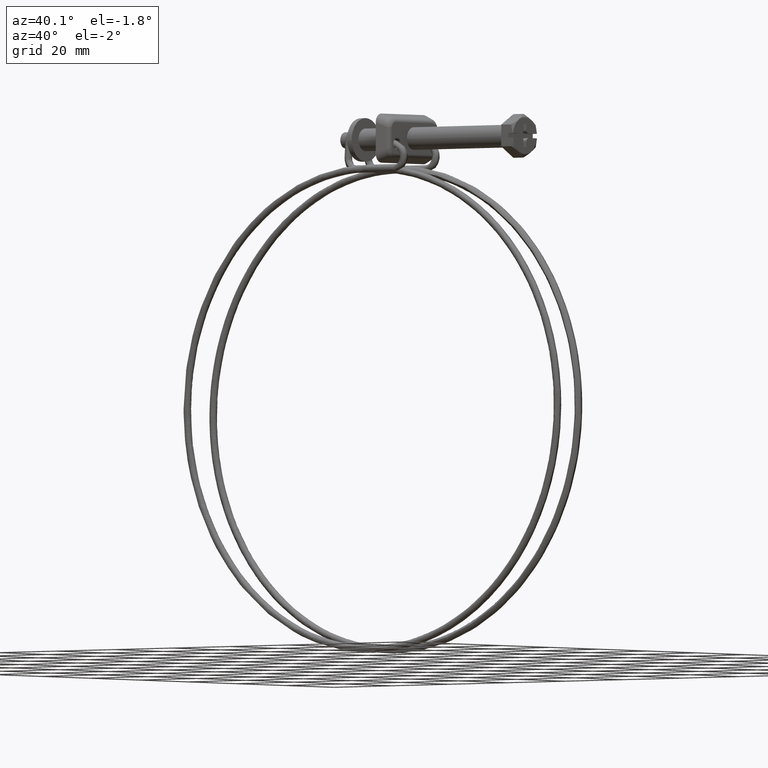
[diagram: clean part render]
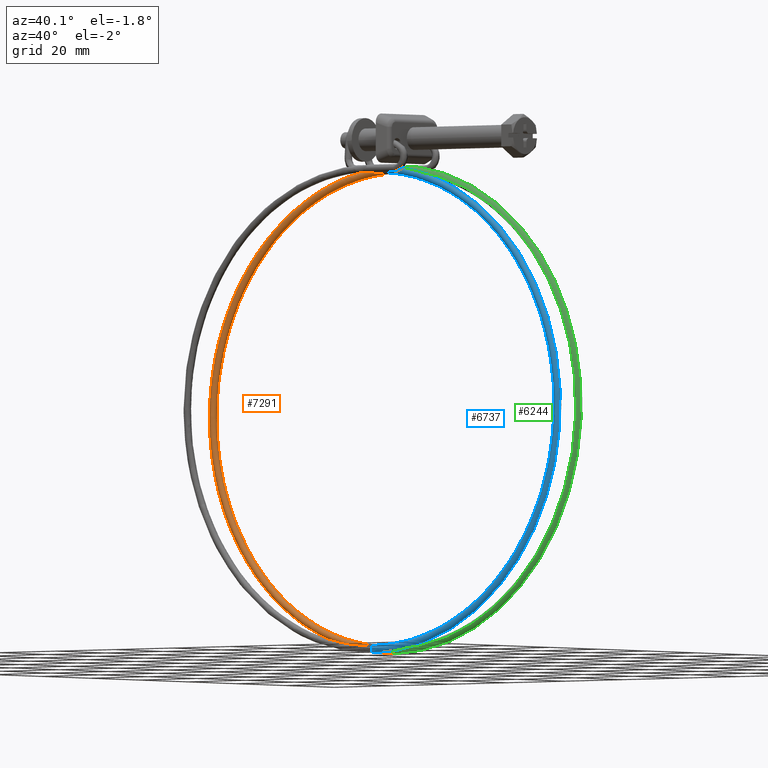
[diagram: same view with three faces highlighted in distinct colors, each labeled with its STEP entity id]
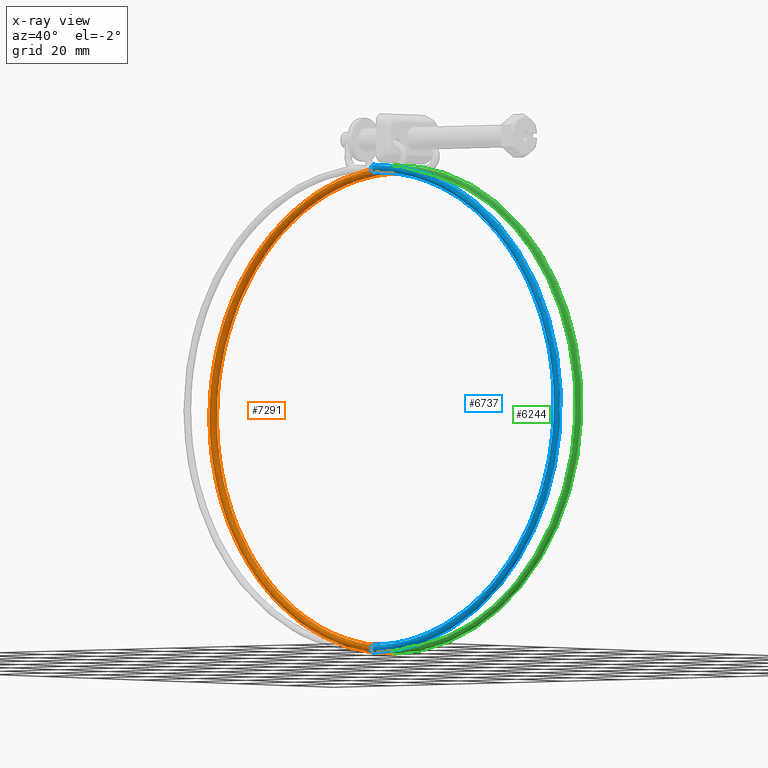
[diagram: x-ray of the same camera — body ghosted, the three highlighted faces saturated]
A machine part, auxiliary view with three faces highlighted in distinct colors.
The next image is the same camera in x-ray (body ghosted, the three faces saturated) — at least one of them is partly hidden behind the body in this view.
Their STEP definitions:

[orange] entity #7291 — the highlighted face is a freeform B-spline surface patch.
#4623=CARTESIAN_POINT('',(-44.650000000000730,5.310473993684795,-7.879430721519410));
#4624=VERTEX_POINT('',#4623);
#4630=CARTESIAN_POINT('',(-44.650000000000723,6.278356289201745,-8.849500152061689));
#4631=VERTEX_POINT('',#4630);
#4632=CARTESIAN_POINT('',(-44.650000000000723,6.278356289201745,-8.849500152061689));
#4633=CARTESIAN_POINT('',(-44.650000000000723,6.016682609479345,-8.841215521238825));
#4634=CARTESIAN_POINT('',(-44.650000000000723,5.760028721938428,-8.725262853996449));
#4635=CARTESIAN_POINT('',(-44.650000000000723,5.415616176367671,-8.358343669943045));
#4636=CARTESIAN_POINT('',(-44.650000000000723,5.318147108054395,-8.120582971277360));
#4637=CARTESIAN_POINT('',(-44.650000000000730,5.310473993684795,-7.879430721519410));
#4638=B_SPLINE_CURVE_WITH_KNOTS('',3,(#4632,#4633,#4634,#4635,#4636,#4637),.UNSPECIFIED.,.F.,.U.,(4,2,4),(0.500000000000000,0.625000000000000,0.740274508793307),.UNSPECIFIED.);
#4639=EDGE_CURVE('',#4631,#4624,#4638,.T.);
#4641=CARTESIAN_POINT('',(-44.650000000000738,7.060248471098623,-7.188876349357892));
#4642=VERTEX_POINT('',#4641);
#4643=CARTESIAN_POINT('',(-44.650000000000738,7.060248471098623,-7.188876349357892));
#4644=CARTESIAN_POINT('',(-44.650000000000730,7.226087322394508,-7.377586474456125));
#4645=CARTESIAN_POINT('',(-44.650000000000723,7.317454450969998,-7.630445629973024));
#4646=CARTESIAN_POINT('',(-44.650000000000730,7.301216254554100,-8.143314882367477));
#4647=CARTESIAN_POINT('',(-44.650000000000723,7.185263349566473,-8.399961293022724));
#4648=CARTESIAN_POINT('',(-44.650000000000730,6.803492058073807,-8.758299623096498));
#4649=CARTESIAN_POINT('',(-44.650000000000723,6.540024555317264,-8.857784955022979));
#4650=CARTESIAN_POINT('',(-44.650000000000723,6.278356289201745,-8.849500152061689));
#4651=B_SPLINE_CURVE_WITH_KNOTS('',3,(#4643,#4644,#4645,#4646,#4647,#4648,#4649,#4650),.UNSPECIFIED.,.F.,.U.,(4,2,2,4),(0.130000262351246,0.250000000000000,0.375000000000000,0.500000000000000),.UNSPECIFIED.);
#4652=EDGE_CURVE('',#4642,#4631,#4651,.T.);
#4654=CARTESIAN_POINT('',(-44.650000000000752,6.341647521705658,-6.850501847938292));
#4655=VERTEX_POINT('',#4654);
#4665=CARTESIAN_POINT('',(-44.650000000000723,5.988340755549976,-6.903656420743625));
#4666=VERTEX_POINT('',#4665);
#4667=CARTESIAN_POINT('',(-44.650000000000723,5.988340755549976,-6.903656420743625));
#4668=CARTESIAN_POINT('',(-44.650000000000730,6.101737214638789,-6.865172243400705));
#4669=CARTESIAN_POINT('',(-44.650000000000738,6.221881488286583,-6.846560706144649));
#4670=CARTESIAN_POINT('',(-44.650000000000752,6.341647521705658,-6.850501847938292));
#4671=B_SPLINE_CURVE_WITH_KNOTS('',3,(#4667,#4668,#4669,#4670),.UNSPECIFIED.,.F.,.U.,(4,4),(0.942811831421911,1.0),.UNSPECIFIED.);
#4672=EDGE_CURVE('',#4666,#4655,#4671,.T.);
#4708=CARTESIAN_POINT('',(-44.650000000000730,5.310473993684795,-7.879430721519410));
#4709=CARTESIAN_POINT('',(-44.650000000000730,5.309825440732663,-7.859078844673854));
#4710=CARTESIAN_POINT('',(-44.650000000000730,5.309816003032521,-7.838702678756057));
#4711=CARTESIAN_POINT('',(-44.650000000000730,5.318722089756965,-7.556584230430167));
#4712=CARTESIAN_POINT('',(-44.650000000000723,5.434647724878667,-7.299830920141325));
#4713=CARTESIAN_POINT('',(-44.650000000000723,5.729048915405349,-7.023310962390822));
#4714=CARTESIAN_POINT('',(-44.650000000000723,5.853951245677701,-6.949512736215663));
#4715=CARTESIAN_POINT('',(-44.650000000000723,5.988340755549976,-6.903656420743625));
#4716=B_SPLINE_CURVE_WITH_KNOTS('',3,(#4708,#4709,#4710,#4711,#4712,#4713,#4714,#4715),.UNSPECIFIED.,.F.,.U.,(4,2,2,4),(0.740274508793307,0.750000000000000,0.875000000000000,0.942811831421911),.UNSPECIFIED.);
#4717=EDGE_CURVE('',#4624,#4666,#4716,.T.);
#6096=CARTESIAN_POINT('',(-44.649999999999046,4.300002000000752,-133.850000999999990));
#6097=VERTEX_POINT('',#6096);
#6098=CARTESIAN_POINT('',(-44.649999999769619,3.302485887016020,-134.780271342321810));
#6099=VERTEX_POINT('',#6098);
#6100=CARTESIAN_POINT('',(-44.649999999999046,4.300002000000752,-133.850000999999990));
#6101=CARTESIAN_POINT('',(-44.649999999966852,4.038195655370024,-133.850000495566090));
#6102=CARTESIAN_POINT('',(-44.649999999922478,3.777998799463453,-133.957772896960310));
#6103=CARTESIAN_POINT('',(-44.649999999838357,3.424196145361151,-134.311556064605810));
#6104=CARTESIAN_POINT('',(-44.649999999799007,3.319730377627817,-134.542534340478000));
#6105=CARTESIAN_POINT('',(-44.649999999769619,3.302485887016020,-134.780271342321810));
#6106=B_SPLINE_CURVE_WITH_KNOTS('',3,(#6100,#6101,#6102,#6103,#6104,#6105),.UNSPECIFIED.,.F.,.U.,(4,2,4),(0.500000000000000,0.625000000000000,0.738888458231654),.UNSPECIFIED.);
#6107=EDGE_CURVE('',#6097,#6099,#6106,.T.);
#6128=CARTESIAN_POINT('',(-44.649999999938402,4.287435984473220,-135.849920191922910));
#6129=VERTEX_POINT('',#6128);
#6145=CARTESIAN_POINT('',(-44.649999999999046,4.300002000000752,-135.850000999999990));
#6146=VERTEX_POINT('',#6145);
#6147=CARTESIAN_POINT('',(-44.649999999938402,4.287435984473220,-135.849920191922910));
#6148=CARTESIAN_POINT('',(-44.649999999958617,4.291624042900045,-135.849974639911810));
#6149=CARTESIAN_POINT('',(-44.649999999978832,4.295812815061126,-135.850001617475900));
#6150=CARTESIAN_POINT('',(-44.649999999999046,4.300002000000752,-135.850000999999990));
#6151=B_SPLINE_CURVE_WITH_KNOTS('',3,(#6147,#6148,#6149,#6150),.UNSPECIFIED.,.F.,.U.,(4,4),(0.997999815404391,1.0),.UNSPECIFIED.);
#6152=EDGE_CURVE('',#6129,#6146,#6151,.T.);
#6154=CARTESIAN_POINT('',(-44.649999999999046,5.028951109211137,-135.534536542634610));
#6155=VERTEX_POINT('',#6154);
#6165=CARTESIAN_POINT('',(-44.649999999999046,5.028951109211137,-135.534536542634610));
#6166=CARTESIAN_POINT('',(-44.649999999999046,5.200678748661970,-135.351169005261110));
#6167=CARTESIAN_POINT('',(-44.649999999999046,5.300002000000750,-135.101327862820110));
#6168=CARTESIAN_POINT('',(-44.649999999999046,5.300002000000750,-134.588201612201000));
#6169=CARTESIAN_POINT('',(-44.649999999999046,5.192228903610570,-134.328014341236810));
#6170=CARTESIAN_POINT('',(-44.649999999999046,4.821988658764040,-133.957774096390210));
#6171=CARTESIAN_POINT('',(-44.649999999999046,4.561801387799900,-133.850000999999990));
#6172=CARTESIAN_POINT('',(-44.649999999999046,4.300002000000752,-133.850000999999990));
#6173=B_SPLINE_CURVE_WITH_KNOTS('',3,(#6165,#6166,#6167,#6168,#6169,#6170,#6171,#6172),.UNSPECIFIED.,.F.,.U.,(4,2,2,4),(0.130000262351250,0.250000000000000,0.375000000000000,0.500000000000000),.UNSPECIFIED.);
#6174=EDGE_CURVE('',#6155,#6097,#6173,.T.);
#6227=CARTESIAN_POINT('',(-44.649999999769619,3.302485887016020,-134.780271342321810));
#6228=CARTESIAN_POINT('',(-44.649999999771467,3.300804588162054,-134.803466287406710));
#6229=CARTESIAN_POINT('',(-44.649999999773392,3.299953544919192,-134.826725569291400));
#6230=CARTESIAN_POINT('',(-44.649999999797728,3.299960689536710,-135.111797701208100));
#6231=CARTESIAN_POINT('',(-44.649999999828417,3.407742793962304,-135.371985962488710));
#6232=CARTESIAN_POINT('',(-44.649999999888657,3.775038524063567,-135.739265955749490));
#6233=CARTESIAN_POINT('',(-44.649999999917860,4.029889019311994,-135.846533327676610));
#6234=CARTESIAN_POINT('',(-44.649999999938402,4.287435984473220,-135.849920191922910));
#6235=B_SPLINE_CURVE_WITH_KNOTS('',3,(#6227,#6228,#6229,#6230,#6231,#6232,#6233,#6234),.UNSPECIFIED.,.F.,.U.,(4,2,2,4),(0.738888458231655,0.750000000000000,0.875000000000000,0.997999815404391),.UNSPECIFIED.);
#6236=EDGE_CURVE('',#6099,#6129,#6235,.T.);
#6950=CARTESIAN_POINT('',(-44.650000000000752,7.060247383395493,-7.188875111646729));
#6951=CARTESIAN_POINT('',(-44.650000000000752,7.226086922888497,-7.377585368821764));
#6952=CARTESIAN_POINT('',(-44.650000000000752,7.317454468358229,-7.630445080780981));
#6953=CARTESIAN_POINT('',(-44.650000000000752,7.301216254554100,-8.143314882367440));
#6954=CARTESIAN_POINT('',(-44.650000000000752,7.185263349566470,-8.399961293022672));
#6955=CARTESIAN_POINT('',(-44.650000000000752,6.803492058073810,-8.758299623096429));
#6956=CARTESIAN_POINT('',(-44.650000000000752,6.540024555317270,-8.857784955022929));
#6957=CARTESIAN_POINT('',(-44.650000000000752,6.016688023086230,-8.841215349100351));
#6958=CARTESIAN_POINT('',(-44.650000000000752,5.760041612430980,-8.725262444112728));
#6959=CARTESIAN_POINT('',(-44.650000000000752,5.401703282357210,-8.343491152620040));
#6960=CARTESIAN_POINT('',(-44.650000000000752,5.302217950430720,-8.080023649863540));
#6961=CARTESIAN_POINT('',(-44.650000000000752,5.318787556353300,-7.556687117632470));
#6962=CARTESIAN_POINT('',(-44.650000000000752,5.434740461340931,-7.300040706977230));
#6963=CARTESIAN_POINT('',(-44.650000000000752,5.816511752833590,-6.941702376903450));
#6964=CARTESIAN_POINT('',(-44.650000000000752,6.079979255590140,-6.842217044976980));
#6965=CARTESIAN_POINT('',(-44.650000000000752,6.341647521705660,-6.850501847938270));
#6966=CARTESIAN_POINT('',(-53.051651431607482,7.060575803439125,-7.188908363623680));
#6967=CARTESIAN_POINT('',(-53.027288726071809,7.226414870708392,-7.377618476348133));
#6968=CARTESIAN_POINT('',(-52.994373129776271,7.317781775157282,-7.630477993664703));
#6969=CARTESIAN_POINT('',(-52.927193507523597,7.301542245185391,-8.143347398465890));
#6970=CARTESIAN_POINT('',(-52.893352565473798,7.185588673076540,-8.399993609677381));
#6971=CARTESIAN_POINT('',(-52.845647111730102,6.803816436463370,-8.758331659314971));
#6972=CARTESIAN_POINT('',(-52.832076362208397,6.540348663842369,-8.857816911285340));
#6973=CARTESIAN_POINT('',(-52.833161297427203,6.017012153205029,-8.841247311847740));
#6974=CARTESIAN_POINT('',(-52.847810301350499,5.760366033793420,-8.725294492837460));
#6975=CARTESIAN_POINT('',(-52.897050085241801,5.402028678888110,-8.343523491030300));
#6976=CARTESIAN_POINT('',(-52.931337654886804,5.302544022571950,-8.080056190238681));
#6977=CARTESIAN_POINT('',(-52.999888289751802,5.319114970838470,-7.556720062957150));
#6978=CARTESIAN_POINT('',(-53.033729231800997,5.435068534402700,-7.300073852599399));
#6979=CARTESIAN_POINT('',(-53.081434685543002,5.816840749744360,-6.941735805315671));
#6980=CARTESIAN_POINT('',(-53.095005435064401,6.080308514333880,-6.842250553917420));
#6981=CARTESIAN_POINT('',(-53.094462967455001,6.341976769989345,-6.850535353601700));
#6982=CARTESIAN_POINT('',(-61.447229034803840,7.033812454892935,-8.859146726053931));
#6983=CARTESIAN_POINT('',(-61.398521364195922,7.199728651103868,-9.043013499008501));
#6984=CARTESIAN_POINT('',(-61.332714140011873,7.291199764768548,-9.289329349497427));
#6985=CARTESIAN_POINT('',(-61.198403814481800,7.275172930174960,-9.788843350263299));
#6986=CARTESIAN_POINT('',(-61.130746572874401,7.159326504964470,-10.038761933907820));
#6987=CARTESIAN_POINT('',(-61.035370403554602,6.777705317632980,-10.387616070438460));
#6988=CARTESIAN_POINT('',(-61.008238786380801,6.514280514946380,-10.484403438034420));
#6989=CARTESIAN_POINT('',(-61.010407866850599,5.990940568993540,-10.468049525191040));
#6990=CARTESIAN_POINT('',(-61.039695207617100,5.734248065564690,-10.355008949389140));
#6991=CARTESIAN_POINT('',(-61.138138919892803,5.375754803591200,-9.983026887486091));
#6992=CARTESIAN_POINT('',(-61.206689091451103,5.276161586575820,-9.726376004580210));
#6993=CARTESIAN_POINT('',(-61.343740444148203,5.292515499433630,-9.216667840533399));
#6994=CARTESIAN_POINT('',(-61.411397685755603,5.408361924640510,-8.966749256831179));
#6995=CARTESIAN_POINT('',(-61.506773855075402,5.789983111964800,-8.617895120358250));
#6996=CARTESIAN_POINT('',(-61.533905472249202,6.053407914662210,-8.521107752646900));
#6997=CARTESIAN_POINT('',(-61.532820932014303,6.315077887642235,-8.529284709068604));
#6998=CARTESIAN_POINT('',(-76.968836144363166,6.932057569280046,-15.288435567917629));
#6999=CARTESIAN_POINT('',(-76.875122169119265,7.098268812992252,-15.453660035947740));
#7000=CARTESIAN_POINT('',(-76.748508506532801,7.190138554991925,-15.674788922478980));
#7001=CARTESIAN_POINT('',(-76.490094290317501,7.174925307355230,-16.122897179493350));
#7002=CARTESIAN_POINT('',(-76.359921178060503,7.059488716986089,-16.346920726180549));
#7003=CARTESIAN_POINT('',(-76.176416611815895,6.678445272343129,-16.659270722802901));
#7004=CARTESIAN_POINT('',(-76.124215148206801,6.415184819856441,-16.745673773585398));
#7005=CARTESIAN_POINT('',(-76.128388477528802,5.891831734657570,-16.730150051499951));
#7006=CARTESIAN_POINT('',(-76.184737571838497,5.634961822698060,-16.628318871137751));
#7007=CARTESIAN_POINT('',(-76.374144117073101,5.275872236349860,-16.294015016235051));
#7008=CARTESIAN_POINT('',(-76.506035234215801,5.175863775571210,-16.063600929024300));
#7009=CARTESIAN_POINT('',(-76.769723209830403,5.191387497642261,-15.606347605540250));
#7010=CARTESIAN_POINT('',(-76.899896322087315,5.306824088015009,-15.382324058910649));
#7011=CARTESIAN_POINT('',(-77.083400888331994,5.687867532665170,-15.069974062230701));
#7012=CARTESIAN_POINT('',(-77.135602351941202,5.951127985141050,-14.983571011563500));
#7013=CARTESIAN_POINT('',(-77.133515687280152,6.212804527736881,-14.991332872606240));
#7014=CARTESIAN_POINT('',(-84.087385564468789,6.856777735413060,-20.044922621343009));
#7015=CARTESIAN_POINT('',(-83.973032020821165,7.023207251832245,-20.196355729215480));
#7016=CARTESIAN_POINT('',(-83.818532961798525,7.115371894415058,-20.398851593265640));
#7017=CARTESIAN_POINT('',(-83.503205591675993,7.100760528941549,-20.808930479382848));
#7018=CARTESIAN_POINT('',(-83.344363149463902,6.985627129613540,-21.013797179227549));
#7019=CARTESIAN_POINT('',(-83.120443532673789,6.605011092272820,-21.299141838023850));
#7020=CARTESIAN_POINT('',(-83.056745217168100,6.341872224166321,-21.377862692232348));
#7021=CARTESIAN_POINT('',(-83.061837680734996,5.818509418706429,-21.362953135677198));
#7022=CARTESIAN_POINT('',(-83.130597101093898,5.561508261980531,-21.269414535391999));
#7023=CARTESIAN_POINT('',(-83.361718548892910,5.201977521797949,-20.962984579466450));
#7024=CARTESIAN_POINT('',(-83.522657369294308,5.101661868510591,-20.751980168212249));
#7025=CARTESIAN_POINT('',(-83.844419991983600,5.116571425116211,-20.333532325235549));
#7026=CARTESIAN_POINT('',(-84.003262433849599,5.231704824444220,-20.128665625333099));
#7027=CARTESIAN_POINT('',(-84.227182050754990,5.612320861777720,-19.843320966652151));
#7028=CARTESIAN_POINT('',(-84.290880366260694,5.875459729891440,-19.764600112385999));
#7029=CARTESIAN_POINT('',(-84.288334134534963,6.137141132617781,-19.772054890721250));
#7030=CARTESIAN_POINT('',(-95.967045076682737,6.668760400986726,-31.924624940055612));
#7031=CARTESIAN_POINT('',(-95.818249912202631,6.835735019029441,-32.041616303168297));
#7032=CARTESIAN_POINT('',(-95.617217988082771,6.928636129290855,-32.197579134561543));
#7033=CARTESIAN_POINT('',(-95.206918609600393,6.915527869517170,-32.512685670217799));
#7034=CARTESIAN_POINT('',(-95.000235139395699,6.801151641930370,-32.669711169258953));
#7035=CARTESIAN_POINT('',(-94.708874197204807,6.421602986894519,-32.887614259819202));
#7036=CARTESIAN_POINT('',(-94.625990877629803,6.158767756550941,-32.947150040626447));
#7037=CARTESIAN_POINT('',(-94.632617116884802,5.635380676299599,-32.933774265296698));
#7038=CARTESIAN_POINT('',(-94.722085872616802,5.378051756455229,-32.860945075023352));
#7039=CARTESIAN_POINT('',(-95.022817732262993,5.017419304229071,-32.624125781624549));
#7040=CARTESIAN_POINT('',(-95.232228979519590,4.916336486144460,-32.461593972113050));
#7041=CARTESIAN_POINT('',(-95.650901814590298,4.929712261423719,-32.140056690831152));
#7042=CARTESIAN_POINT('',(-95.857585285140999,5.044088489010520,-31.983031191847711));
#7043=CARTESIAN_POINT('',(-96.148946227216612,5.423637144053580,-31.765128101172049));
#7044=CARTESIAN_POINT('',(-96.231829546791602,5.686472374389950,-31.705592320422500));
#7045=CARTESIAN_POINT('',(-96.228516427106399,5.948165914519230,-31.712280208029672));
#7046=CARTESIAN_POINT('',(-100.723482553353700,6.556096872674393,-39.043166336823333));
#7047=CARTESIAN_POINT('',(-100.560898788611890,6.723398103678369,-39.139520960538754));
#7048=CARTESIAN_POINT('',(-100.341237570488800,6.816740489242419,-39.267602217795869));
#7049=CARTESIAN_POINT('',(-99.892916431202408,6.804532857488790,-39.525803400651952));
#7050=CARTESIAN_POINT('',(-99.667079947369999,6.690610310640350,-39.654163499628247));
#7051=CARTESIAN_POINT('',(-99.348719071353401,6.311701207697080,-39.831657079348552));
#7052=CARTESIAN_POINT('',(-99.258155092381102,6.049047910463449,-39.879697584293453));
#7053=CARTESIAN_POINT('',(-99.265395374297810,5.525646285271920,-39.867240817190712));
#7054=CARTESIAN_POINT('',(-99.363155050834294,5.268120976964880,-39.806820251832853));
#7055=CARTESIAN_POINT('',(-99.691755231511195,4.906828402995431,-39.611710143135149));
#7056=CARTESIAN_POINT('',(-99.920572270730901,4.805285916567170,-39.478222055232251));
#7057=CARTESIAN_POINT('',(-100.378042821023000,4.817742683669920,-39.214751460481097));
#7058=CARTESIAN_POINT('',(-100.603879304855400,4.931665230511150,-39.086391361475947));
#7059=CARTESIAN_POINT('',(-100.922240180756800,5.310574333458020,-38.908897781784503));
#7060=CARTESIAN_POINT('',(-101.012804159729000,5.573227630691650,-38.860857276839603));
#7061=CARTESIAN_POINT('',(-101.009184018770600,5.834928443287415,-38.867085660390977));
#7062=CARTESIAN_POINT('',(-107.152682043440510,6.310441479500371,-54.564676376603529));
#7063=CARTESIAN_POINT('',(-106.971461132424910,6.478454823336327,-54.616036806002278));
#7064=CARTESIAN_POINT('',(-106.726619920531600,6.572759319555612,-54.683327986552932));
#7065=CARTESIAN_POINT('',(-106.226907262502810,6.562515323194850,-54.817458672667897));
#7066=CARTESIAN_POINT('',(-105.975182907471610,6.449581934523230,-54.883319722932200));
#7067=CARTESIAN_POINT('',(-105.620327993203600,6.072067244267800,-54.972708619269703));
#7068=CARTESIAN_POINT('',(-105.519382570972990,5.809810615003120,-54.995686023499800));
#7069=CARTESIAN_POINT('',(-105.527452813864200,5.286377277557870,-54.985232965995998));
#7070=CARTESIAN_POINT('',(-105.636418783688000,5.028423784306800,-54.951866872439787));
#7071=CARTESIAN_POINT('',(-106.002686745126200,4.665691949747690,-54.847695120409597));
#7072=CARTESIAN_POINT('',(-106.257733319882600,4.563147250394940,-54.777530934131697));
#7073=CARTESIAN_POINT('',(-106.767644195422410,4.573600307898711,-54.640662887075599));
#7074=CARTESIAN_POINT('',(-107.019368550453610,4.686533696577540,-54.574801836840201));
#7075=CARTESIAN_POINT('',(-107.374223464837000,5.064048386829360,-54.485412940473800));
#7076=CARTESIAN_POINT('',(-107.475168887067600,5.326305016094040,-54.462435536243703));
#7077=CARTESIAN_POINT('',(-107.471133765621900,5.588021684816665,-54.467662064995608));
#7078=CARTESIAN_POINT('',(-108.822915579199600,6.177546248342674,-62.961539306634982));
#7079=CARTESIAN_POINT('',(-108.636853328126900,6.345944812743280,-62.988559929086172));
#7080=CARTESIAN_POINT('',(-108.385471151409210,6.440769766942828,-63.022966450787131));
#7081=CARTESIAN_POINT('',(-107.872408604970800,6.431588007782230,-63.089980656967903));
#7082=CARTESIAN_POINT('',(-107.613959401197210,6.319189708561080,-63.122032572408202));
#7083=CARTESIAN_POINT('',(-107.249624491783610,5.942429331978120,-63.163760853485492));
#7084=CARTESIAN_POINT('',(-107.145982299568000,5.680387281992440,-63.173180263382392));
#7085=CARTESIAN_POINT('',(-107.154268140081000,5.156936789659780,-63.163811121338497));
#7086=CARTESIAN_POINT('',(-107.266145149989400,4.898751667883889,-63.145080263159691));
#7087=CARTESIAN_POINT('',(-107.642198007431800,4.535241258992659,-63.090102014347487));
#7088=CARTESIAN_POINT('',(-107.904058184377400,4.432154408154330,-63.054193170632502));
#7089=CARTESIAN_POINT('',(-108.427591395029000,4.441523550154940,-62.985811327648612));
#7090=CARTESIAN_POINT('',(-108.686040598802610,4.553921849379700,-62.953759412092900));
#7091=CARTESIAN_POINT('',(-109.050375508216210,4.930682225962650,-62.912031131073299));
#7092=CARTESIAN_POINT('',(-109.154017700431600,5.192724275948330,-62.902611721176392));
#7093=CARTESIAN_POINT('',(-109.149874780175300,5.454449522114659,-62.907296292198353));
#7094=CARTESIAN_POINT('',(-108.822915579199600,5.911651196657704,-79.761873550318171));
#7095=CARTESIAN_POINT('',(-108.636853328126900,6.080820503233029,-79.740195537436392));
#7096=CARTESIAN_POINT('',(-108.385471151409210,6.176686780136410,-79.708807042282729));
#7097=CARTESIAN_POINT('',(-107.872408604970800,6.169630325492880,-79.641535837602092));
#7098=CARTESIAN_POINT('',(-107.613959401197210,6.058302623336210,-79.605943061852898));
#7099=CARTESIAN_POINT('',(-107.249624491783610,5.683051463579980,-79.552312866002794));
#7100=CARTESIAN_POINT('',(-107.145982299568000,5.421438739844980,-79.534605691642199));
#7101=CARTESIAN_POINT('',(-107.154268140081000,4.897953924348310,-79.527405227763495));
#7102=CARTESIAN_POINT('',(-107.266145149989400,4.639305364504820,-79.537956277344790));
#7103=CARTESIAN_POINT('',(-107.642198007431800,4.274237198475746,-79.581403479510996));
#7104=CARTESIAN_POINT('',(-107.904058184377400,4.170065620997405,-79.614032091433600));
#7105=CARTESIAN_POINT('',(-108.427591395029000,4.177266084919370,-79.682676177784700));
#7106=CARTESIAN_POINT('',(-108.686040598802610,4.288593787072430,-79.718268953649201));
#7107=CARTESIAN_POINT('',(-109.050375508216210,4.663844946828670,-79.771899149441609));
#7108=CARTESIAN_POINT('',(-109.154017700431600,4.925457670563670,-79.789606323802190));
#7109=CARTESIAN_POINT('',(-109.149874780175300,5.187200078312005,-79.793206555741548));
#7110=CARTESIAN_POINT('',(-107.152682043640200,5.778755965500231,-88.158736480306189));
#7111=CARTESIAN_POINT('',(-106.971461132667300,5.948310492638872,-88.112718660463869));
#7112=CARTESIAN_POINT('',(-106.726619920667800,6.044697227525776,-88.048445506461178));
#7113=CARTESIAN_POINT('',(-106.226907262639200,6.038703010078891,-87.914057821902205));
#7114=CARTESIAN_POINT('',(-105.975182907608200,5.927910397372700,-87.844655911299796));
#7115=CARTESIAN_POINT('',(-105.620327993283000,5.553413551285339,-87.743365100217886));
#7116=CARTESIAN_POINT('',(-105.519382571052200,5.292015406829340,-87.712099931495104));
#7117=CARTESIAN_POINT('',(-105.527452814001190,4.768513436448860,-87.705983383076301));
#7118=CARTESIAN_POINT('',(-105.636418783882600,4.509633248080550,-87.731169668063998));
#7119=CARTESIAN_POINT('',(-106.002686745262810,4.143786507719350,-87.823810373506291));
#7120=CARTESIAN_POINT('',(-106.257733319961400,4.039072778759024,-87.890694327905592));
#7121=CARTESIAN_POINT('',(-106.767644195501010,4.045189327174220,-88.027824618329703));
#7122=CARTESIAN_POINT('',(-107.019368550589600,4.155981939873195,-88.097226528874401));
#7123=CARTESIAN_POINT('',(-107.374223464972600,4.530478785964170,-88.198517339956297));
#7124=CARTESIAN_POINT('',(-107.475168887203200,4.791876930420160,-88.229782508621398));
#7125=CARTESIAN_POINT('',(-107.471133765757600,5.053627915610405,-88.232840782859640));
#7126=CARTESIAN_POINT('',(-100.723482553152610,5.533100572325764,-103.680246520173400));
#7127=CARTESIAN_POINT('',(-100.560898788368110,5.703367212299050,-103.589234506040400));
#7128=CARTESIAN_POINT('',(-100.341237570351200,5.800716057834670,-103.464171275329700));
#7129=CARTESIAN_POINT('',(-99.892916431064506,5.796685475787690,-103.205713093918010));
#7130=CARTESIAN_POINT('',(-99.667079947231997,5.686882021258310,-103.073812134662010));
#7131=CARTESIAN_POINT('',(-99.348719071272910,5.313779587865979,-102.884416640140400));
#7132=CARTESIAN_POINT('',(-99.258155092300498,5.052778111378930,-102.828088370760990));
#7133=CARTESIAN_POINT('',(-99.265395374159496,4.529244428737520,-102.823975531941000));
#7134=CARTESIAN_POINT('',(-99.363155050638397,4.269936055425180,-102.876216288672400));
#7135=CARTESIAN_POINT('',(-99.691755231373193,3.902650054474340,-103.059795350665790));
#7136=CARTESIAN_POINT('',(-99.920572270650808,3.796934112582330,-103.190003206862400));
#7137=CARTESIAN_POINT('',(-100.378042820943190,3.801046951405775,-103.453736044980000));
#7138=CARTESIAN_POINT('',(-100.603879304718210,3.910850405942369,-103.585637004293800));
#7139=CARTESIAN_POINT('',(-100.922240180619600,4.283952839331089,-103.775032498815190));
#7140=CARTESIAN_POINT('',(-101.012804159591990,4.544954315818140,-103.831360768252400));
#7141=CARTESIAN_POINT('',(-101.009184018633600,4.806721157138846,-103.833417187633500));
#7142=CARTESIAN_POINT('',(-95.967045076746217,5.420437044008065,-110.798787916762510));
#7143=CARTESIAN_POINT('',(-95.818249912321420,5.591030296939953,-110.687139163291500));
#7144=CARTESIAN_POINT('',(-95.617217988255831,5.688820417784793,-110.534194358392400));
#7145=CARTESIAN_POINT('',(-95.206918609829998,5.685690463754340,-110.218830824236210));
#7146=CARTESIAN_POINT('',(-95.000235139452300,5.576340689959720,-110.058264465001600));
#7147=CARTESIAN_POINT('',(-94.708874197319005,5.203877808667190,-109.828459459611000));
#7148=CARTESIAN_POINT('',(-94.625990877686405,4.943058265282880,-109.760635914397600));
#7149=CARTESIAN_POINT('',(-94.632617116999000,4.419510037712100,-109.757442083689400));
#7150=CARTESIAN_POINT('',(-94.722085872673389,4.160005275929875,-109.822091465423000));
#7151=CARTESIAN_POINT('',(-95.022817732261800,3.792059153241145,-110.047379712233390));
#7152=CARTESIAN_POINT('',(-95.232228979633788,3.685883543005480,-110.206631289837010));
#7153=CARTESIAN_POINT('',(-95.650901814762193,3.689077373645190,-110.528430814601610));
#7154=CARTESIAN_POINT('',(-95.857585285197601,3.798427147443420,-110.688997173836200));
#7155=CARTESIAN_POINT('',(-96.148946227273200,4.170890028737750,-110.918802179227000));
#7156=CARTESIAN_POINT('',(-96.231829546963510,4.431709572122055,-110.986625724555590));
#7157=CARTESIAN_POINT('',(-96.228516427307142,4.693483685905643,-110.988222639909690));
#7158=CARTESIAN_POINT('',(-84.087385564403093,5.232419709592930,-122.678490235744110));
#7159=CARTESIAN_POINT('',(-83.973032020700103,5.403558064151002,-122.532399737368710));
#7160=CARTESIAN_POINT('',(-83.818532961623163,5.502084652667801,-122.332921899919100));
#7161=CARTESIAN_POINT('',(-83.503205591444100,5.500457804337170,-121.922586015302000));
#7162=CARTESIAN_POINT('',(-83.344363149405098,5.391865202290971,-121.714178455032990));
#7163=CARTESIAN_POINT('',(-83.120443532557402,5.020469703281680,-121.416931881521610));
#7164=CARTESIAN_POINT('',(-83.056745217109395,4.759953797674720,-121.329923262791600));
#7165=CARTESIAN_POINT('',(-83.061837680618595,4.236381295298060,-121.328263213539600));
#7166=CARTESIAN_POINT('',(-83.130597101035093,3.976548770411786,-121.413622005169600));
#7167=CARTESIAN_POINT('',(-83.361718548891801,3.607500935668655,-121.708520914391400));
#7168=CARTESIAN_POINT('',(-83.522657369177793,3.500558160642955,-121.916245093968600));
#7169=CARTESIAN_POINT('',(-83.844419991809502,3.502218209963525,-122.334955180197200));
#7170=CARTESIAN_POINT('',(-84.003262433790809,3.610810812006120,-122.543362740466190));
#7171=CARTESIAN_POINT('',(-84.227182050696285,3.982206311013610,-122.840609313977590));
#7172=CARTESIAN_POINT('',(-84.290880366086597,4.242722216620570,-122.927617932592000));
#7173=CARTESIAN_POINT('',(-84.288334134331990,4.504508467810700,-122.928447957218100));
#7174=CARTESIAN_POINT('',(-76.968836144379608,5.157139875709456,-127.434977289042490));
#7175=CARTESIAN_POINT('',(-76.875122169156867,5.328496502970783,-127.275095430564800));
#7176=CARTESIAN_POINT('',(-76.748508506518249,5.427317992083942,-127.056984570686000));
#7177=CARTESIAN_POINT('',(-76.490094290359096,5.426293025912970,-126.608619315115400));
#7178=CARTESIAN_POINT('',(-76.359921178159610,5.318003614907900,-126.381054908004000));
#7179=CARTESIAN_POINT('',(-76.176416611857107,4.947035523215260,-126.056802996724400));
#7180=CARTESIAN_POINT('',(-76.124215148247799,4.686641201977681,-125.962112181362800));
#7181=CARTESIAN_POINT('',(-76.128388477685206,4.163058979343596,-125.961066297525600));
#7182=CARTESIAN_POINT('',(-76.184737571937404,3.903095209685541,-126.054717669521200));
#7183=CARTESIAN_POINT('',(-76.374144117114497,3.533606221113430,-126.377490477662210));
#7184=CARTESIAN_POINT('',(-76.506035234199700,3.426356253579015,-126.604624333138200));
#7185=CARTESIAN_POINT('',(-76.769723209987703,3.427402137426945,-127.062139899931590));
#7186=CARTESIAN_POINT('',(-76.899896322071811,3.535691548432020,-127.289704306812400));
#7187=CARTESIAN_POINT('',(-77.083400888374399,3.906659640128255,-127.613956218092000));
#7188=CARTESIAN_POINT('',(-77.135602352098999,4.167053961364040,-127.708647033453600));
#7189=CARTESIAN_POINT('',(-77.133515687409144,4.428845072681081,-127.709169975372110));
#7190=CARTESIAN_POINT('',(-61.447229034783888,5.055384990118354,-133.864266130890290));
#7191=CARTESIAN_POINT('',(-61.398521364154803,5.227036664885746,-133.685741967522290));
#7192=CARTESIAN_POINT('',(-61.332714140023022,5.326256782314093,-133.442444143475310));
#7193=CARTESIAN_POINT('',(-61.198403814436702,5.326045403107090,-132.942673144266000));
#7194=CARTESIAN_POINT('',(-61.130746572771812,5.218165826936160,-132.689213700427810));
#7195=CARTESIAN_POINT('',(-61.035370403509887,4.847775477924861,-132.328457649009010));
#7196=CARTESIAN_POINT('',(-61.008238786336207,4.587545506894389,-132.223382517064610));
#7197=CARTESIAN_POINT('',(-61.010407866690699,4.063950145021490,-132.223166823985390));
#7198=CARTESIAN_POINT('',(-61.039695207514796,3.803808966829160,-132.328027590959210));
#7199=CARTESIAN_POINT('',(-61.138138919847897,3.433723653882345,-132.688478606331610));
#7200=CARTESIAN_POINT('',(-61.206689091463701,3.326058442577450,-132.941849257387390));
#7201=CARTESIAN_POINT('',(-61.343740443987393,3.326274135645825,-133.451819664859410));
#7202=CARTESIAN_POINT('',(-61.411397685767703,3.434153711816750,-133.705279108928210));
#7203=CARTESIAN_POINT('',(-61.506773855029500,3.804544060824450,-134.066035160347010));
#7204=CARTESIAN_POINT('',(-61.533905472087902,4.064774031856725,-134.171110292291390));
#7205=CARTESIAN_POINT('',(-61.532820931881851,4.326571712793173,-134.171218138830990));
#7206=CARTESIAN_POINT('',(-53.051651470460513,5.028950509460651,-135.534537751249590));
#7207=CARTESIAN_POINT('',(-53.027288764814813,5.200678839415823,-135.351170105030210));
#7208=CARTESIAN_POINT('',(-52.994373168309188,5.300002522990141,-135.101328420362310));
#7209=CARTESIAN_POINT('',(-52.927193545749098,5.300002518803160,-134.588201620276010));
#7210=CARTESIAN_POINT('',(-52.893352603565887,5.192229420310789,-134.328014348504410));
#7211=CARTESIAN_POINT('',(-52.845647149528503,4.821989172513820,-133.957774100658610));
#7212=CARTESIAN_POINT('',(-52.832076399934103,4.561801900726520,-133.850001001961200));
#7213=CARTESIAN_POINT('',(-52.833161335241400,4.038203125227130,-133.850000997692400));
#7214=CARTESIAN_POINT('',(-52.847810339195398,3.778015855190265,-133.957774092121010));
#7215=CARTESIAN_POINT('',(-52.897050123296303,3.407775613436005,-134.328014333967390));
#7216=CARTESIAN_POINT('',(-52.931337693075200,3.300002519189035,-134.588201603893000));
#7217=CARTESIAN_POINT('',(-52.999888328427197,3.300002523461460,-135.111800379491200));
#7218=CARTESIAN_POINT('',(-53.033729270524098,3.407775621953825,-135.371987651494010));
#7219=CARTESIAN_POINT('',(-53.081434724561397,3.778015869747175,-135.742227899340800));
#7220=CARTESIAN_POINT('',(-53.095005474242200,4.038203141541691,-135.850000997692400));
#7221=CARTESIAN_POINT('',(-53.094463006610212,4.300002529291390,-135.850000999826790));
#7222=CARTESIAN_POINT('',(-44.649999999999046,5.028949982884636,-135.534537745304790));
#7223=CARTESIAN_POINT('',(-44.649999999999046,5.200678314367561,-135.351170097699110));
#7224=CARTESIAN_POINT('',(-44.649999999999046,5.300002000000750,-135.101328412287190));
#7225=CARTESIAN_POINT('',(-44.649999999999046,5.300002000000750,-134.588201612201000));
#7226=CARTESIAN_POINT('',(-44.649999999999046,5.192228903610570,-134.328014341236810));
#7227=CARTESIAN_POINT('',(-44.649999999999046,4.821988658764040,-133.957774096390210));
#7228=CARTESIAN_POINT('',(-44.649999999999046,4.561801387799900,-133.850000999999990));
#7229=CARTESIAN_POINT('',(-44.649999999999046,4.038202612201605,-133.850000999999990));
#7230=CARTESIAN_POINT('',(-44.649999999999046,3.778015341237470,-133.957774096390210));
#7231=CARTESIAN_POINT('',(-44.649999999999046,3.407775096390940,-134.328014341236810));
#7232=CARTESIAN_POINT('',(-44.649999999999046,3.300002000000755,-134.588201612201000));
#7233=CARTESIAN_POINT('',(-44.649999999999046,3.300002000000755,-135.111800387799210));
#7234=CARTESIAN_POINT('',(-44.649999999999046,3.407775096390940,-135.371987658763200));
#7235=CARTESIAN_POINT('',(-44.649999999999046,3.778015341237470,-135.742227903610000));
#7236=CARTESIAN_POINT('',(-44.649999999999046,4.038202612201605,-135.850000999999990));
#7237=CARTESIAN_POINT('',(-44.649999999999046,4.300002000000752,-135.850000999999990));
#7238=B_SPLINE_SURFACE_WITH_KNOTS('',3,3,((#6950,#6966,#6982,#6998,#7014,#7030,#7046,#7062,#7078,#7094,#7110,#7126,#7142,#7158,#7174,#7190,#7206,#7222),(#6951,#6967,#6983,#6999,#7015,#7031,#7047,#7063,#7079,#7095,#7111,#7127,#7143,#7159,#7175,#7191,#7207,#7223),(#6952,#6968,#6984,#7000,#7016,#7032,#7048,#7064,#7080,#7096,#7112,#7128,#7144,#7160,#7176,#7192,#7208,#7224),(#6953,#6969,#6985,#7001,#7017,#7033,#7049,#7065,#7081,#7097,#7113,#7129,#7145,#7161,#7177,#7193,#7209,#7225),(#6954,#6970,#6986,#7002,#7018,#7034,#7050,#7066,#7082,#7098,#7114,#7130,#7146,#7162,#7178,#7194,#7210,#7226),(#6955,#6971,#6987,#7003,#7019,#7035,#7051,#7067,#7083,#7099,#7115,#7131,#7147,#7163,#7179,#7195,#7211,#7227),(#6956,#6972,#6988,#7004,#7020,#7036,#7052,#7068,#7084,#7100,#7116,#7132,#7148,#7164,#7180,#7196,#7212,#7228),(#6957,#6973,#6989,#7005,#7021,#7037,#7053,#7069,#7085,#7101,#7117,#7133,#7149,#7165,#7181,#7197,#7213,#7229),(#6958,#6974,#6990,#7006,#7022,#7038,#7054,#7070,#7086,#7102,#7118,#7134,#7150,#7166,#7182,#7198,#7214,#7230),(#6959,#6975,#6991,#7007,#7023,#7039,#7055,#7071,#7087,#7103,#7119,#7135,#7151,#7167,#7183,#7199,#7215,#7231),(#6960,#6976,#6992,#7008,#7024,#7040,#7056,#7072,#7088,#7104,#7120,#7136,#7152,#7168,#7184,#7200,#7216,#7232),(#6961,#6977,#6993,#7009,#7025,#7041,#7057,#7073,#7089,#7105,#7121,#7137,#7153,#7169,#7185,#7201,#7217,#7233),(#6962,#6978,#6994,#7010,#7026,#7042,#7058,#7074,#7090,#7106,#7122,#7138,#7154,#7170,#7186,#7202,#7218,#7234),(#6963,#6979,#6995,#7011,#7027,#7043,#7059,#7075,#7091,#7107,#7123,#7139,#7155,#7171,#7187,#7203,#7219,#7235),(#6964,#6980,#6996,#7012,#7028,#7044,#7060,#7076,#7092,#7108,#7124,#7140,#7156,#7172,#7188,#7204,#7220,#7236),(#6965,#6981,#6997,#7013,#7029,#7045,#7061,#7077,#7093,#7109,#7125,#7141,#7157,#7173,#7189,#7205,#7221,#7237)),.UNSPECIFIED.,.F.,.F.,.U.,(4,2,2,2,2,2,2,4),(4,2,2,2,2,2,2,2,4),(0.0,0.753982236861554,1.539380400259005,2.324778563656457,3.110176727053909,3.895574890451361,4.680973053848812,5.466371217246264),(0.0,25.333389019833682,50.666778039667292,76.000167059501010,101.333556079334800,126.666945099168300,152.000334119001990,177.333723138835610,202.667112158669110),.UNSPECIFIED.);
#7239=ORIENTED_EDGE('',*,*,#6174,.F.);
#7240=CARTESIAN_POINT('',(-44.650000000000738,7.060248471098623,-7.188876349357892));
#7241=CARTESIAN_POINT('',(-53.051651431607468,7.060576891142264,-7.188909601334312));
#7242=CARTESIAN_POINT('',(-61.447229034803819,7.033813543098704,-8.859147932006330));
#7243=CARTESIAN_POINT('',(-76.968836144363152,6.932058659420596,-15.288436651622680));
#7244=CARTESIAN_POINT('',(-84.087385564468789,6.856778826984992,-20.044923614607590));
#7245=CARTESIAN_POINT('',(-95.967045076682723,6.668761496133645,-31.924625707437961));
#7246=CARTESIAN_POINT('',(-100.723482553353700,6.556097969963513,-39.043166968852788));
#7247=CARTESIAN_POINT('',(-107.152682043440390,6.310442581460416,-54.564676713504952));
#7248=CARTESIAN_POINT('',(-108.822915579199600,6.177547352829607,-62.961539483877353));
#7249=CARTESIAN_POINT('',(-108.822915579199600,5.911652306200403,-79.761873408116770));
#7250=CARTESIAN_POINT('',(-107.152682043640200,5.778757077569817,-88.158736178445722));
#7251=CARTESIAN_POINT('',(-100.723482553152490,5.533101689066277,-103.680245923184900));
#7252=CARTESIAN_POINT('',(-95.967045076746203,5.420438162890779,-110.798787184421100));
#7253=CARTESIAN_POINT('',(-84.087385564403078,5.232420832050630,-122.678489277520400));
#7254=CARTESIAN_POINT('',(-76.968836144379608,5.157140999598538,-127.434976240378400));
#7255=CARTESIAN_POINT('',(-61.447229034783902,5.055386115942216,-133.864264959978900));
#7256=CARTESIAN_POINT('',(-53.051651470460513,5.028951635787153,-135.534536548579410));
#7257=CARTESIAN_POINT('',(-44.649999999999046,5.028951109211137,-135.534536542634610));
#7258=B_SPLINE_CURVE_WITH_KNOTS('',3,(#7240,#7241,#7242,#7243,#7244,#7245,#7246,#7247,#7248,#7249,#7250,#7251,#7252,#7253,#7254,#7255,#7256,#7257),.UNSPECIFIED.,.F.,.U.,(4,2,2,2,2,2,2,2,4),(0.022599942606244,0.083687819875131,0.144775697144019,0.205863574412906,0.266951451681794,0.328039328950681,0.389127206219568,0.450215083488455,0.511302960757342),.UNSPECIFIED.);
#7259=EDGE_CURVE('',#4642,#6155,#7258,.T.);
#7260=ORIENTED_EDGE('',*,*,#7259,.F.);
#7261=ORIENTED_EDGE('',*,*,#4652,.T.);
#7262=ORIENTED_EDGE('',*,*,#4639,.T.);
#7263=ORIENTED_EDGE('',*,*,#4717,.T.);
#7264=ORIENTED_EDGE('',*,*,#4672,.T.);
#7265=CARTESIAN_POINT('',(-44.650000000000752,6.341647521705660,-6.850501847938270));
#7266=CARTESIAN_POINT('',(-53.094462967455001,6.341976769989345,-6.850535353601700));
#7267=CARTESIAN_POINT('',(-61.532820932014303,6.315077887642235,-8.529284709068604));
#7268=CARTESIAN_POINT('',(-77.133515687280152,6.212804527736881,-14.991332872606240));
#7269=CARTESIAN_POINT('',(-84.288334134534963,6.137141132617781,-19.772054890721250));
#7270=CARTESIAN_POINT('',(-96.228516427106399,5.948165914519230,-31.712280208029672));
#7271=CARTESIAN_POINT('',(-101.009184018770600,5.834928443287415,-38.867085660390977));
#7272=CARTESIAN_POINT('',(-107.471133765621900,5.588021684816665,-54.467662064995608));
#7273=CARTESIAN_POINT('',(-109.149874780175300,5.454449522114659,-62.907296292198353));
#7274=CARTESIAN_POINT('',(-109.149874780175300,5.187200078312005,-79.793206555741548));
#7275=CARTESIAN_POINT('',(-107.471133765757600,5.053627915610405,-88.232840782859640));
#7276=CARTESIAN_POINT('',(-101.009184018633600,4.806721157138846,-103.833417187633500));
#7277=CARTESIAN_POINT('',(-96.228516427307142,4.693483685905643,-110.988222639909690));
#7278=CARTESIAN_POINT('',(-84.288334134331990,4.504508467810700,-122.928447957218100));
#7279=CARTESIAN_POINT('',(-77.133515687409144,4.428845072681081,-127.709169975372110));
#7280=CARTESIAN_POINT('',(-61.532820931881851,4.326571712793173,-134.171218138830990));
#7281=CARTESIAN_POINT('',(-53.094463006610212,4.300002529291390,-135.850000999826790));
#7282=CARTESIAN_POINT('',(-44.649999999999046,4.300002000000752,-135.850000999999990));
#7283=B_SPLINE_CURVE_WITH_KNOTS('',3,(#7265,#7266,#7267,#7268,#7269,#7270,#7271,#7272,#7273,#7274,#7275,#7276,#7277,#7278,#7279,#7280,#7281,#7282),.UNSPECIFIED.,.F.,.U.,(4,2,2,2,2,2,2,2,4),(0.022599942606244,0.083687819875131,0.144775697144019,0.205863574412906,0.266951451681794,0.328039328950681,0.389127206219568,0.450215083488455,0.511302960757342),.UNSPECIFIED.);
#7284=EDGE_CURVE('',#4655,#6146,#7283,.T.);
#7285=ORIENTED_EDGE('',*,*,#7284,.T.);
#7286=ORIENTED_EDGE('',*,*,#6152,.F.);
#7287=ORIENTED_EDGE('',*,*,#6236,.F.);
#7288=ORIENTED_EDGE('',*,*,#6107,.F.);
#7289=EDGE_LOOP('',(#7239,#7260,#7261,#7262,#7263,#7264,#7285,#7286,#7287,#7288));
#7290=FACE_OUTER_BOUND('',#7289,.T.);
#7291=ADVANCED_FACE('',(#7290),#7238,.T.);

[blue] entity #6737 — the highlighted face is a freeform B-spline surface patch.
#4769=CARTESIAN_POINT('',(-44.650000076910182,-3.574627628987813,-8.538355575693831));
#4770=VERTEX_POINT('',#4769);
#4776=CARTESIAN_POINT('',(-44.650000111730883,-4.300002000000000,-8.850000999999995));
#4777=VERTEX_POINT('',#4776);
#4778=CARTESIAN_POINT('',(-44.650000111730883,-4.300002000000000,-8.850000999999995));
#4779=CARTESIAN_POINT('',(-44.650000111730890,-3.870368094033327,-8.850000999999995));
#4780=CARTESIAN_POINT('',(-44.650000076910175,-3.574627628987901,-8.538355575693954));
#4788=(BOUNDED_CURVE()B_SPLINE_CURVE(2,(#4778,#4779,#4780),.UNSPECIFIED.,.F.,.U.)B_SPLINE_CURVE_WITH_KNOTS((3,3),(0.500000000000000,0.628950473340883),.UNSPECIFIED.)CURVE()GEOMETRIC_REPRESENTATION_ITEM()RATIONAL_B_SPLINE_CURVE((1.0,0.848925123182682,0.853699661369434))REPRESENTATION_ITEM(''));
#4789=EDGE_CURVE('',#4777,#4770,#4788,.T.);
#4791=CARTESIAN_POINT('',(-44.650000085312527,-4.945744038383258,-8.613556642939400));
#4792=VERTEX_POINT('',#4791);
#4793=CARTESIAN_POINT('',(-44.650000085312534,-4.945744038383259,-8.613556642939402));
#4794=CARTESIAN_POINT('',(-44.650000111730890,-4.666161151807970,-8.850000999999995));
#4795=CARTESIAN_POINT('',(-44.650000111730883,-4.300002000000000,-8.850000999999995));
#4803=(BOUNDED_CURVE()B_SPLINE_CURVE(2,(#4793,#4794,#4795),.UNSPECIFIED.,.F.,.U.)B_SPLINE_CURVE_WITH_KNOTS((3,3),(0.387591910275776,0.500000000000000),.UNSPECIFIED.)CURVE()GEOMETRIC_REPRESENTATION_ITEM()RATIONAL_B_SPLINE_CURVE((0.855039471779436,0.868305731120003,1.0))REPRESENTATION_ITEM(''));
#4804=EDGE_CURVE('',#4792,#4777,#4803,.T.);
#4858=CARTESIAN_POINT('',(-44.649999888239272,-4.300002000000000,-6.850001000000015));
#4859=VERTEX_POINT('',#4858);
#4860=CARTESIAN_POINT('',(-44.649999888239272,-4.300002000000000,-6.850001000000015));
#4861=CARTESIAN_POINT('',(-44.649999888267232,-5.300002000000001,-6.850001000000007));
#4862=CARTESIAN_POINT('',(-44.649999999999046,-5.300002000000000,-7.850001000000001));
#4863=CARTESIAN_POINT('',(-44.650000051837971,-5.300001999999999,-8.313959278472320));
#4864=CARTESIAN_POINT('',(-44.650000085312534,-4.945744038383259,-8.613556642939402));
#4872=(BOUNDED_CURVE()B_SPLINE_CURVE(2,(#4860,#4861,#4862,#4863,#4864),.UNSPECIFIED.,.F.,.U.)B_SPLINE_CURVE_WITH_KNOTS((3,2,3),(0.0,0.250000000000000,0.387591910275776),.UNSPECIFIED.)CURVE()GEOMETRIC_REPRESENTATION_ITEM()RATIONAL_B_SPLINE_CURVE((1.0,0.707106781186548,1.0,0.838801050066545,0.855039471779436))REPRESENTATION_ITEM(''));
#4873=EDGE_CURVE('',#4859,#4792,#4872,.T.);
#4875=CARTESIAN_POINT('',(-44.649999960482852,-3.364492663809099,-7.496699030150335));
#4876=VERTEX_POINT('',#4875);
#4890=CARTESIAN_POINT('',(-44.650000076910175,-3.574627628987901,-8.538355575693950));
#4891=CARTESIAN_POINT('',(-44.650000044575535,-3.300001999999999,-8.248960545973876));
#4892=CARTESIAN_POINT('',(-44.649999999999046,-3.300002000000000,-7.850001000000001));
#4893=CARTESIAN_POINT('',(-44.649999979603862,-3.300002000000000,-7.667464048793956));
#4894=CARTESIAN_POINT('',(-44.649999960482852,-3.364492663809099,-7.496699030150335));
#4902=(BOUNDED_CURVE()B_SPLINE_CURVE(2,(#4890,#4891,#4892,#4893,#4894),.UNSPECIFIED.,.F.,.U.)B_SPLINE_CURVE_WITH_KNOTS((3,2,3),(0.628950473340883,0.750000000000000,0.810000001076627),.UNSPECIFIED.)CURVE()GEOMETRIC_REPRESENTATION_ITEM()RATIONAL_B_SPLINE_CURVE((0.853699661369434,0.858181658003866,1.0,0.929705626223425,0.893152552465052))REPRESENTATION_ITEM(''));
#4903=EDGE_CURVE('',#4770,#4876,#4902,.T.);
#6599=CARTESIAN_POINT('',(-53.683312197110418,-3.373632407886055,-8.114451849923144));
#6600=CARTESIAN_POINT('',(19.691949825580569,-3.373632407886055,2.367336610910418));
#6601=CARTESIAN_POINT('',(19.226242238385677,-3.373632407886055,-71.751352548298627));
#6602=CARTESIAN_POINT('',(18.766080974915706,-3.373632407886055,-144.987328486926800));
#6603=CARTESIAN_POINT('',(-53.727986285436614,-3.373632407886053,-134.579152271890990));
#6604=CARTESIAN_POINT('',(-53.681596225181607,-3.369049838818235,-8.126464102447681));
#6605=CARTESIAN_POINT('',(19.679727400700674,-3.369049838818235,2.353333233273619));
#6606=CARTESIAN_POINT('',(19.214108279522364,-3.369049838818235,-71.751276307383279));
#6607=CARTESIAN_POINT('',(18.754034428486904,-3.369049838818234,-144.973340308048080));
#6608=CARTESIAN_POINT('',(-53.726261827198464,-3.369049838818234,-134.567141234710190));
#6609=CARTESIAN_POINT('',(-53.655740825862182,-3.300002000000000,-8.307458663333351));
#6610=CARTESIAN_POINT('',(19.495566068795871,-3.300002000000001,2.142337403714492));
#6611=CARTESIAN_POINT('',(19.031279908924603,-3.300002000000001,-71.750127547734309));
#6612=CARTESIAN_POINT('',(18.572523144352953,-3.300002000000001,-144.762573485707970));
#6613=CARTESIAN_POINT('',(-53.700278560451466,-3.300002000000000,-134.386164986010750));
#6614=CARTESIAN_POINT('',(-53.629927148820272,-3.300002000000001,-8.488161157358748));
#6615=CARTESIAN_POINT('',(19.311701913898670,-3.300002000000001,1.931682053389484));
#6616=CARTESIAN_POINT('',(18.848746564364681,-3.300002000000001,-71.748980641812977));
#6617=CARTESIAN_POINT('',(18.391304760904003,-3.300002000000001,-144.552146773058210));
#6618=CARTESIAN_POINT('',(-53.674337222318819,-3.300002000000001,-134.205480774621690));
#6619=CARTESIAN_POINT('',(-53.488510973248324,-3.300002000000000,-9.478111391101136));
#6620=CARTESIAN_POINT('',(18.304431017616800,-3.300002000000001,0.777639800580198));
#6621=CARTESIAN_POINT('',(17.848766303508544,-3.300001999999999,-71.742697497847431));
#6622=CARTESIAN_POINT('',(17.398528307976388,-3.300002000000001,-143.399357075844730));
#6623=CARTESIAN_POINT('',(-53.532221675510662,-3.300002000000001,-133.215630699430730));
#6624=CARTESIAN_POINT('',(-53.488510973248317,-4.300002000000000,-9.478111391101134));
#6625=CARTESIAN_POINT('',(18.304431017616810,-4.300002000000000,0.777639800580198));
#6626=CARTESIAN_POINT('',(17.848766303508540,-4.300002000000000,-71.742697497847431));
#6627=CARTESIAN_POINT('',(17.398528307976381,-4.300002000000000,-143.399357075844700));
#6628=CARTESIAN_POINT('',(-53.532221675510655,-4.300002000000001,-133.215630699430730));
#6629=CARTESIAN_POINT('',(-53.488510973248324,-5.300001999999999,-9.478111391101136));
#6630=CARTESIAN_POINT('',(18.304431017616800,-5.300001999999999,0.777639800580198));
#6631=CARTESIAN_POINT('',(17.848766303508544,-5.300001999999999,-71.742697497847431));
#6632=CARTESIAN_POINT('',(17.398528307976388,-5.300001999999998,-143.399357075844730));
#6633=CARTESIAN_POINT('',(-53.532221675510662,-5.300001999999999,-133.215630699430730));
#6634=CARTESIAN_POINT('',(-53.629927148820272,-5.300001999999999,-8.488161157358748));
#6635=CARTESIAN_POINT('',(19.311701913898670,-5.300002000000001,1.931682053389484));
#6636=CARTESIAN_POINT('',(18.848746564364681,-5.300002000000000,-71.748980641812977));
#6637=CARTESIAN_POINT('',(18.391304760904003,-5.300002000000000,-144.552146773058210));
#6638=CARTESIAN_POINT('',(-53.674337222318819,-5.300002000000001,-134.205480774621690));
#6639=CARTESIAN_POINT('',(-53.771343324392255,-5.300002000000001,-7.498210923616378));
#6640=CARTESIAN_POINT('',(20.318972810180540,-5.300002000000002,3.085724306198755));
#6641=CARTESIAN_POINT('',(19.848726825220812,-5.300002000000001,-71.755263785778538));
#6642=CARTESIAN_POINT('',(19.384081213831610,-5.300001999999998,-145.704936470271750));
#6643=CARTESIAN_POINT('',(-53.816452769126997,-5.300002000000001,-135.195330849812480));
#6644=CARTESIAN_POINT('',(-53.771343324392241,-4.288600801430579,-7.498210923616377));
#6645=CARTESIAN_POINT('',(20.318972810180544,-4.288600801430579,3.085724306198754));
#6646=CARTESIAN_POINT('',(19.848726825220822,-4.288600801430581,-71.755263785778581));
#6647=CARTESIAN_POINT('',(19.384081213831614,-4.288600801430579,-145.704936470271750));
#6648=CARTESIAN_POINT('',(-53.816452769126990,-4.288600801430581,-135.195330849812510));
#6649=CARTESIAN_POINT('',(-53.771343324392248,-4.277306781734665,-7.498210923616379));
#6650=CARTESIAN_POINT('',(20.318972810180547,-4.277306781734665,3.085724306198755));
#6651=CARTESIAN_POINT('',(19.848726825220805,-4.277306781734664,-71.755263785778538));
#6652=CARTESIAN_POINT('',(19.384081213831610,-4.277306781734666,-145.704936470271720));
#6653=CARTESIAN_POINT('',(-53.816452769126990,-4.277306781734666,-135.195330849812510));
#6661=(BOUNDED_SURFACE()B_SPLINE_SURFACE(2,2,((#6599,#6604,#6609,#6614,#6619,#6624,#6629,#6634,#6639,#6644,#6649),(#6600,#6605,#6610,#6615,#6620,#6625,#6630,#6635,#6640,#6645,#6650),(#6601,#6606,#6611,#6616,#6621,#6626,#6631,#6636,#6641,#6646,#6651),(#6602,#6607,#6612,#6617,#6622,#6627,#6632,#6637,#6642,#6647,#6652),(#6603,#6608,#6613,#6618,#6623,#6628,#6633,#6638,#6643,#6648,#6653)),.UNSPECIFIED.,.F.,.F.,.U.)B_SPLINE_SURFACE_WITH_KNOTS((3,2,3),(3,1,2,2,2,1,3),(0.0,118.243161586230000,235.567420683105690),(0.0,0.026919673771869,0.424564693650042,2.081418943142429,3.738273192634816,5.395127442127202,5.421968871590567),.UNSPECIFIED.)GEOMETRIC_REPRESENTATION_ITEM()RATIONAL_B_SPLINE_SURFACE(((0.880012641070960,0.882464382189726,0.921132113671883,0.990778248986098,0.700586018510203,0.990778248986098,0.700586018510203,0.990778248986098,0.700586018510203,0.995479431535813,1.000180614085528),(0.577163551105930,0.578771545746526,0.604132096463493,0.649810088918053,0.459485120357388,0.649810088918053,0.459485120357388,0.649810088918053,0.459485120357388,0.652893398279937,0.655976707641822),(0.888203431970284,0.890677992873568,0.929705627484771,1.0,0.707106781186548,1.0,0.707106781186548,1.0,0.707106781186548,1.004744939197571,1.009489878395143),(0.579580733774090,0.581195462756743,0.606662224414319,0.652531518019940,0.461409461329852,0.652531518019940,0.461409461329852,0.652531518019940,0.461409461329852,0.655627740397444,0.658723962774947),(0.875342656451693,0.877781386855861,0.916243919341031,0.985520461804496,0.696868201540057,0.985520461804496,0.696868201540057,0.985520461804496,0.696868201540057,0.990196696473721,0.994872931142946)))REPRESENTATION_ITEM('')SURFACE());
#6662=ORIENTED_EDGE('',*,*,#4789,.T.);
#6663=ORIENTED_EDGE('',*,*,#4903,.T.);
#6664=CARTESIAN_POINT('',(-44.649999999855410,-3.364945210158729,-135.203131635922600));
#6665=VERTEX_POINT('',#6664);
#6666=CARTESIAN_POINT('',(-44.649999960482852,-3.364492663809099,-7.496699030150335));
#6667=CARTESIAN_POINT('',(19.605769809185944,-3.364492663809170,-7.496699069957926));
#6668=CARTESIAN_POINT('',(19.202041557125991,-3.364720358690777,-71.751114283731468));
#6669=CARTESIAN_POINT('',(18.803354992630947,-3.364945210158658,-135.203131635778900));
#6670=CARTESIAN_POINT('',(-44.649999999855410,-3.364945210158729,-135.203131635922550));
#6678=(BOUNDED_CURVE()B_SPLINE_CURVE(2,(#6666,#6667,#6668,#6669,#6670),.UNSPECIFIED.,.F.,.U.)B_SPLINE_CURVE_WITH_KNOTS((3,2,3),(-3.795101888693480,-2.0,-0.220236089797397),.UNSPECIFIED.)CURVE()GEOMETRIC_REPRESENTATION_ITEM()RATIONAL_B_SPLINE_CURVE((0.834864094028898,0.608677214417784,0.893152553776853,0.611107871231058,0.831036135744819))REPRESENTATION_ITEM(''));
#6679=EDGE_CURVE('',#4876,#6665,#6678,.T.);
#6680=ORIENTED_EDGE('',*,*,#6679,.T.);
#6681=CARTESIAN_POINT('',(-44.650000000000752,-4.300002000000002,-133.850000999999990));
#6682=VERTEX_POINT('',#6681);
#6683=CARTESIAN_POINT('',(-44.650000000000752,-4.300002000000002,-133.850000999999990));
#6684=CARTESIAN_POINT('',(-44.649999999987593,-4.038161661959670,-133.850016503426100));
#6685=CARTESIAN_POINT('',(-44.649999999966681,-3.777909289246834,-133.957814246805610));
#6686=CARTESIAN_POINT('',(-44.649999999921150,-3.407527296419484,-134.328108156277690));
#6687=CARTESIAN_POINT('',(-44.649999999896842,-3.299678426657533,-134.588324114420290));
#6688=CARTESIAN_POINT('',(-44.649999999869038,-3.299591888972492,-134.970530271645000));
#6689=CARTESIAN_POINT('',(-44.649999999861457,-3.322352722698359,-135.090572399688800));
#6690=CARTESIAN_POINT('',(-44.649999999855410,-3.364945210158729,-135.203131635922600));
#6691=B_SPLINE_CURVE_WITH_KNOTS('',3,(#6683,#6684,#6685,#6686,#6687,#6688,#6689,#6690),.UNSPECIFIED.,.F.,.U.,(4,2,2,4),(0.500000000000000,0.625000000000000,0.750000000000000,0.807474354685364),.UNSPECIFIED.);
#6692=EDGE_CURVE('',#6682,#6665,#6691,.T.);
#6693=ORIENTED_EDGE('',*,*,#6692,.F.);
#6694=CARTESIAN_POINT('',(-44.650000000000759,-5.028951109210404,-135.534536542634500));
#6695=VERTEX_POINT('',#6694);
#6696=CARTESIAN_POINT('',(-44.650000000000759,-5.028951109210404,-135.534536542634500));
#6697=CARTESIAN_POINT('',(-44.650000000000759,-5.200678748661233,-135.351169005261110));
#6698=CARTESIAN_POINT('',(-44.650000000000752,-5.300001999999999,-135.101327862819890));
#6699=CARTESIAN_POINT('',(-44.650000000000759,-5.300002000000001,-134.588201612200890));
#6700=CARTESIAN_POINT('',(-44.650000000000738,-5.192228903609815,-134.328014341236700));
#6701=CARTESIAN_POINT('',(-44.650000000000752,-4.821988658763284,-133.957774096390210));
#6702=CARTESIAN_POINT('',(-44.650000000000752,-4.561801387799152,-133.850000999999990));
#6703=CARTESIAN_POINT('',(-44.650000000000752,-4.300002000000002,-133.850000999999990));
#6704=B_SPLINE_CURVE_WITH_KNOTS('',3,(#6696,#6697,#6698,#6699,#6700,#6701,#6702,#6703),.UNSPECIFIED.,.F.,.U.,(4,2,2,4),(0.130000262351262,0.250000000000000,0.375000000000000,0.500000000000000),.UNSPECIFIED.);
#6705=EDGE_CURVE('',#6695,#6682,#6704,.T.);
#6706=ORIENTED_EDGE('',*,*,#6705,.F.);
#6707=CARTESIAN_POINT('',(-44.649999999978697,-4.300002000000001,-135.850000999999990));
#6708=VERTEX_POINT('',#6707);
#6709=CARTESIAN_POINT('',(-44.649999999978697,-4.300002000000001,-135.850000999999990));
#6710=CARTESIAN_POINT('',(-44.650000000000773,-4.561801387799146,-135.850000999999990));
#6711=CARTESIAN_POINT('',(-44.650000000000773,-4.821988658763279,-135.742227903609800));
#6712=CARTESIAN_POINT('',(-44.650000000000773,-5.014513974615458,-135.549702587757590));
#6713=CARTESIAN_POINT('',(-44.650000000000773,-5.021795399815440,-135.542177274286590));
#6714=CARTESIAN_POINT('',(-44.650000000000759,-5.028951109210404,-135.534536542634500));
#6715=B_SPLINE_CURVE_WITH_KNOTS('',3,(#6709,#6710,#6711,#6712,#6713,#6714),.UNSPECIFIED.,.F.,.U.,(4,2,4),(0.0,0.125000000000000,0.130000262351262),.UNSPECIFIED.);
#6716=EDGE_CURVE('',#6708,#6695,#6715,.T.);
#6717=ORIENTED_EDGE('',*,*,#6716,.F.);
#6718=CARTESIAN_POINT('',(-44.649999888239272,-4.300002000000000,-6.850001000000015));
#6719=CARTESIAN_POINT('',(20.256543984681063,-4.300002000000000,-6.850001112493310));
#6720=CARTESIAN_POINT('',(19.848726825220812,-4.300002000000000,-71.755263785778538));
#6721=CARTESIAN_POINT('',(19.446002414434385,-4.300001999999999,-135.850000999956790));
#6722=CARTESIAN_POINT('',(-44.649999999978704,-4.300002000000001,-135.850001000000020));
#6730=(BOUNDED_CURVE()B_SPLINE_CURVE(2,(#6718,#6719,#6720,#6721,#6722),.UNSPECIFIED.,.F.,.U.)B_SPLINE_CURVE_WITH_KNOTS((3,2,3),(-3.795101887331083,-2.0,-0.220236089795460),.UNSPECIFIED.)CURVE()GEOMETRIC_REPRESENTATION_ITEM()RATIONAL_B_SPLINE_CURVE((0.934738517126999,0.681493001458472,1.0,0.684214436432582,0.930452622266056))REPRESENTATION_ITEM(''));
#6731=EDGE_CURVE('',#4859,#6708,#6730,.T.);
#6732=ORIENTED_EDGE('',*,*,#6731,.F.);
#6733=ORIENTED_EDGE('',*,*,#4873,.T.);
#6734=ORIENTED_EDGE('',*,*,#4804,.T.);
#6735=EDGE_LOOP('',(#6662,#6663,#6680,#6693,#6706,#6717,#6732,#6733,#6734));
#6736=FACE_OUTER_BOUND('',#6735,.T.);
#6737=ADVANCED_FACE('',(#6736),#6661,.T.);

[green] entity #6244 — the highlighted face is a freeform B-spline surface patch.
#5515=CARTESIAN_POINT('',(-44.649999999847267,3.302436326670402,-7.919734258877777));
#5516=VERTEX_POINT('',#5515);
#5530=CARTESIAN_POINT('',(-44.649999999996382,3.551046279341736,-7.187380951897808));
#5531=VERTEX_POINT('',#5530);
#5532=CARTESIAN_POINT('',(-44.649999999847267,3.302436326670402,-7.919734258877778));
#5533=CARTESIAN_POINT('',(-44.650000000000752,3.300002000000000,-7.884910123203779));
#5534=CARTESIAN_POINT('',(-44.650000000000752,3.300002000000000,-7.850001000000001));
#5535=CARTESIAN_POINT('',(-44.650000000000745,3.300002000000000,-7.471134891482537));
#5536=CARTESIAN_POINT('',(-44.649999999996382,3.551046279341736,-7.187380951897810));
#5544=(BOUNDED_CURVE()B_SPLINE_CURVE(2,(#5532,#5533,#5534,#5535,#5536),.UNSPECIFIED.,.F.,.U.)B_SPLINE_CURVE_WITH_KNOTS((3,2,3),(0.737833684017260,0.750000000000000,0.865779888012593),.UNSPECIFIED.)CURVE()GEOMETRIC_REPRESENTATION_ITEM()RATIONAL_B_SPLINE_CURVE((0.972879871061546,0.985746274202855,1.0,0.864355423704522,0.854350158233093))REPRESENTATION_ITEM(''));
#5545=EDGE_CURVE('',#5516,#5531,#5544,.T.);
#5645=CARTESIAN_POINT('',(-44.649999999983557,4.287435958278233,-6.850079955819304));
#5646=VERTEX_POINT('',#5645);
#5647=CARTESIAN_POINT('',(-44.649999999996382,3.551046279341736,-7.187380951897810));
#5648=CARTESIAN_POINT('',(-44.649999999991273,3.844540717962473,-6.855645836160806));
#5649=CARTESIAN_POINT('',(-44.649999999983564,4.287435958278233,-6.850079955819304));
#5657=(BOUNDED_CURVE()B_SPLINE_CURVE(2,(#5647,#5648,#5649),.UNSPECIFIED.,.F.,.U.)B_SPLINE_CURVE_WITH_KNOTS((3,3),(0.865779888012593,0.997784295274912),.UNSPECIFIED.)CURVE()GEOMETRIC_REPRESENTATION_ITEM()RATIONAL_B_SPLINE_CURVE((0.854350158233093,0.842942830408467,0.994854294155291))REPRESENTATION_ITEM(''));
#5658=EDGE_CURVE('',#5531,#5646,#5657,.T.);
#6098=CARTESIAN_POINT('',(-44.649999999769619,3.302485887016020,-134.780271342321810));
#6099=VERTEX_POINT('',#6098);
#6109=CARTESIAN_POINT('',(-44.649999999769626,3.302485887016020,-134.780271342321900));
#6110=CARTESIAN_POINT('',(19.582405530913508,3.302485887016020,-134.780271342088530));
#6111=CARTESIAN_POINT('',(18.775258561133576,3.302460795454571,-70.552935516292749));
#6112=CARTESIAN_POINT('',(17.988145131122849,3.302436326670402,-7.919734259180106));
#6113=CARTESIAN_POINT('',(-44.649999999847267,3.302436326670402,-7.919734258877777));
#6121=(BOUNDED_CURVE()B_SPLINE_CURVE(2,(#6109,#6110,#6111,#6112,#6113),.UNSPECIFIED.,.F.,.U.)B_SPLINE_CURVE_WITH_KNOTS((3,2,3),(-3.822326489113122,-2.0,-0.208790604149167),.UNSPECIFIED.)CURVE()GEOMETRIC_REPRESENTATION_ITEM()RATIONAL_B_SPLINE_CURVE((0.922371478316950,0.667193238145990,0.977505800795127,0.672491973037953,0.913821779423857))REPRESENTATION_ITEM(''));
#6122=EDGE_CURVE('',#6099,#5516,#6121,.T.);
#6128=CARTESIAN_POINT('',(-44.649999999938402,4.287435984473220,-135.849920191922910));
#6129=VERTEX_POINT('',#6128);
#6130=CARTESIAN_POINT('',(-44.649999999938402,4.287435984473220,-135.849920191922910));
#6131=CARTESIAN_POINT('',(20.665586668666208,4.287435984473220,-135.849920191860520));
#6132=CARTESIAN_POINT('',(19.844828401575199,4.287435971211143,-70.539491505194604));
#6133=CARTESIAN_POINT('',(19.044441509214234,4.287435958278235,-6.850079955852583));
#6134=CARTESIAN_POINT('',(-44.649999999983564,4.287435958278233,-6.850079955819305));
#6142=(BOUNDED_CURVE()B_SPLINE_CURVE(2,(#6130,#6131,#6132,#6133,#6134),.UNSPECIFIED.,.F.,.U.)B_SPLINE_CURVE_WITH_KNOTS((3,2,3),(-3.822326489116452,-2.0,-0.208790604143862),.UNSPECIFIED.)CURVE()GEOMETRIC_REPRESENTATION_ITEM()RATIONAL_B_SPLINE_CURVE((0.943596935759976,0.682546576810809,1.0,0.687967245299239,0.934850492633354))REPRESENTATION_ITEM(''));
#6143=EDGE_CURVE('',#6129,#5646,#6142,.T.);
#6179=CARTESIAN_POINT('',(-53.577615292734286,4.295627836964993,-135.229189943861540));
#6180=CARTESIAN_POINT('',(20.788501111251016,4.295627836964990,-145.622435209591690));
#6181=CARTESIAN_POINT('',(19.844931341035139,4.295627836964993,-70.539491126042051));
#6182=CARTESIAN_POINT('',(18.921694243859950,4.295627836964989,2.925515417356422));
#6183=CARTESIAN_POINT('',(-53.805225589413176,4.295627836964991,-7.503036002847832));
#6184=CARTESIAN_POINT('',(-53.577607522984813,4.291161014428403,-135.229134349475120));
#6185=CARTESIAN_POINT('',(20.788444159787254,4.291161014428402,-145.622370569910570));
#6186=CARTESIAN_POINT('',(19.844875210764982,4.291161014428403,-70.539491831432954));
#6187=CARTESIAN_POINT('',(18.921638917087794,4.291161014428404,2.925450774992829));
#6188=CARTESIAN_POINT('',(-53.805217621573306,4.291161014428402,-7.503091569189539));
#6189=CARTESIAN_POINT('',(-53.575861745383165,3.287514915913586,-135.216642899786450));
#6190=CARTESIAN_POINT('',(20.775647789672874,3.287514915913585,-145.607846741563320));
#6191=CARTESIAN_POINT('',(19.832263353862292,3.287514915913586,-70.539650325043766));
#6192=CARTESIAN_POINT('',(18.909207597382576,3.287514915913586,2.910926343925897));
#6193=CARTESIAN_POINT('',(-53.803427335226047,3.287514915913584,-7.515576717548835));
#6194=CARTESIAN_POINT('',(-53.437460085146611,3.300080955796938,-134.226346441605610));
#6195=CARTESIAN_POINT('',(19.761177866830209,3.300080955796939,-144.456427480387930));
#6196=CARTESIAN_POINT('',(18.832421259220620,3.300080955796938,-70.552215372765446));
#6197=CARTESIAN_POINT('',(17.923678120707894,3.300080955796938,1.759459300374359));
#6198=CARTESIAN_POINT('',(-53.661497113115551,3.300080955796938,-8.505373619288442));
#6199=CARTESIAN_POINT('',(-53.433499092914296,3.300440590112624,-134.198004609781980));
#6200=CARTESIAN_POINT('',(19.732144201501143,3.300440590112625,-144.423474387615360));
#6201=CARTESIAN_POINT('',(18.803806235646142,3.300440590112624,-70.552574978685911));
#6202=CARTESIAN_POINT('',(17.895472717715226,3.300440590112623,1.726504840092034));
#6203=CARTESIAN_POINT('',(-53.657435135055827,3.300440590112624,-8.533701154035194));
#6204=CARTESIAN_POINT('',(-53.427478880243044,3.303481015269470,-134.154928570985390));
#6205=CARTESIAN_POINT('',(19.688016662324987,3.303481015269469,-144.373389809047100));
#6206=CARTESIAN_POINT('',(18.760314979564729,3.303481015269470,-70.553121534698192));
#6207=CARTESIAN_POINT('',(17.852604033674460,3.303481015269470,1.676418183080093));
#6208=CARTESIAN_POINT('',(-53.651261436560254,3.303481015269471,-8.576755463063448));
#6209=CARTESIAN_POINT('',(-53.424181049598978,3.305146539030972,-134.131331816431010));
#6210=CARTESIAN_POINT('',(19.663843903173564,3.305146539030969,-144.345953825134700));
#6211=CARTESIAN_POINT('',(18.736490771868649,3.305146539030972,-70.553420934281647));
#6212=CARTESIAN_POINT('',(17.829120866613646,3.305146539030971,1.648981060610673));
#6213=CARTESIAN_POINT('',(-53.647879527448772,3.305146539030972,-8.600340314201798));
#6214=CARTESIAN_POINT('',(-53.422967567101942,3.305759391585001,-134.122649063515840));
#6215=CARTESIAN_POINT('',(19.654949201382848,3.305759391584997,-144.335858374561330));
#6216=CARTESIAN_POINT('',(18.727724324417245,3.305759391585001,-70.553531102508373));
#6217=CARTESIAN_POINT('',(17.820479909791182,3.305759391584998,1.638885191089456));
#6218=CARTESIAN_POINT('',(-53.646635107114221,3.305759391585002,-8.609018687090044));
#6226=(BOUNDED_SURFACE()B_SPLINE_SURFACE(2,2,((#6179,#6184,#6189,#6194,#6199,#6204,#6209,#6214),(#6180,#6185,#6190,#6195,#6200,#6205,#6210,#6215),(#6181,#6186,#6191,#6196,#6201,#6206,#6211,#6216),(#6182,#6187,#6192,#6197,#6202,#6207,#6212,#6217),(#6183,#6188,#6193,#6198,#6203,#6208,#6213,#6218)),.UNSPECIFIED.,.F.,.F.,.U.)B_SPLINE_SURFACE_WITH_KNOTS((3,2,3),(3,1,2,1,1,3),(0.0,118.497705241828300,235.318996505484190),(0.0,0.009628416612766,1.666116966409214,1.732376445211048,1.766487844782465,1.785965568443998),.UNSPECIFIED.)GEOMETRIC_REPRESENTATION_ITEM()RATIONAL_B_SPLINE_SURFACE(((1.003090949316686,1.001545474658343,0.707106781186548,1.0,0.988284282420452,0.971956903691070,0.963239535416717,0.960071084804723),(0.653609495216692,0.652602470966301,0.460747558963097,0.651595446715910,0.643961538486066,0.633322692849195,0.627642495374282,0.625577947382362),(1.003090949316686,1.001545474658343,0.707106781186548,1.0,0.988284282420452,0.971956903691070,0.963239535416717,0.960071084804723),(0.658553688807358,0.657539046976621,0.464232858893119,0.656524405145884,0.648832750631114,0.638113428023215,0.632390263002458,0.630310097849185),(0.993342455397073,0.991812000364139,0.700234795987588,0.990281545331204,0.978679686421865,0.962510984582525,0.953878335656578,0.950740677488227)))REPRESENTATION_ITEM('')SURFACE());
#6227=CARTESIAN_POINT('',(-44.649999999769619,3.302485887016020,-134.780271342321810));
#6228=CARTESIAN_POINT('',(-44.649999999771467,3.300804588162054,-134.803466287406710));
#6229=CARTESIAN_POINT('',(-44.649999999773392,3.299953544919192,-134.826725569291400));
#6230=CARTESIAN_POINT('',(-44.649999999797728,3.299960689536710,-135.111797701208100));
#6231=CARTESIAN_POINT('',(-44.649999999828417,3.407742793962304,-135.371985962488710));
#6232=CARTESIAN_POINT('',(-44.649999999888657,3.775038524063567,-135.739265955749490));
#6233=CARTESIAN_POINT('',(-44.649999999917860,4.029889019311994,-135.846533327676610));
#6234=CARTESIAN_POINT('',(-44.649999999938402,4.287435984473220,-135.849920191922910));
#6235=B_SPLINE_CURVE_WITH_KNOTS('',3,(#6227,#6228,#6229,#6230,#6231,#6232,#6233,#6234),.UNSPECIFIED.,.F.,.U.,(4,2,2,4),(0.738888458231655,0.750000000000000,0.875000000000000,0.997999815404391),.UNSPECIFIED.);
#6236=EDGE_CURVE('',#6099,#6129,#6235,.T.);
#6237=ORIENTED_EDGE('',*,*,#6236,.T.);
#6238=ORIENTED_EDGE('',*,*,#6143,.T.);
#6239=ORIENTED_EDGE('',*,*,#5658,.F.);
#6240=ORIENTED_EDGE('',*,*,#5545,.F.);
#6241=ORIENTED_EDGE('',*,*,#6122,.F.);
#6242=EDGE_LOOP('',(#6237,#6238,#6239,#6240,#6241));
#6243=FACE_OUTER_BOUND('',#6242,.T.);
#6244=ADVANCED_FACE('',(#6243),#6226,.T.);